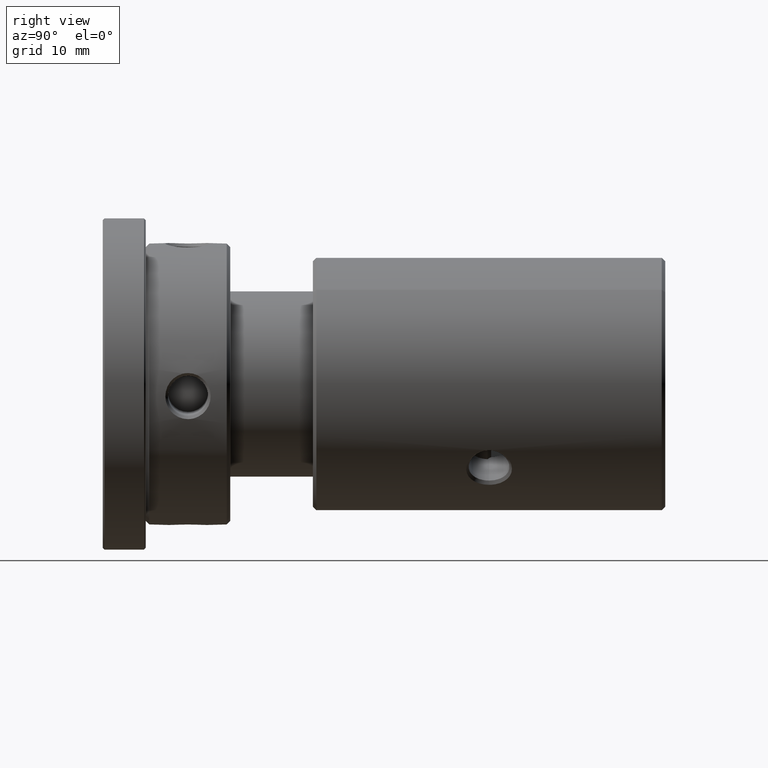
[diagram: clean part render]
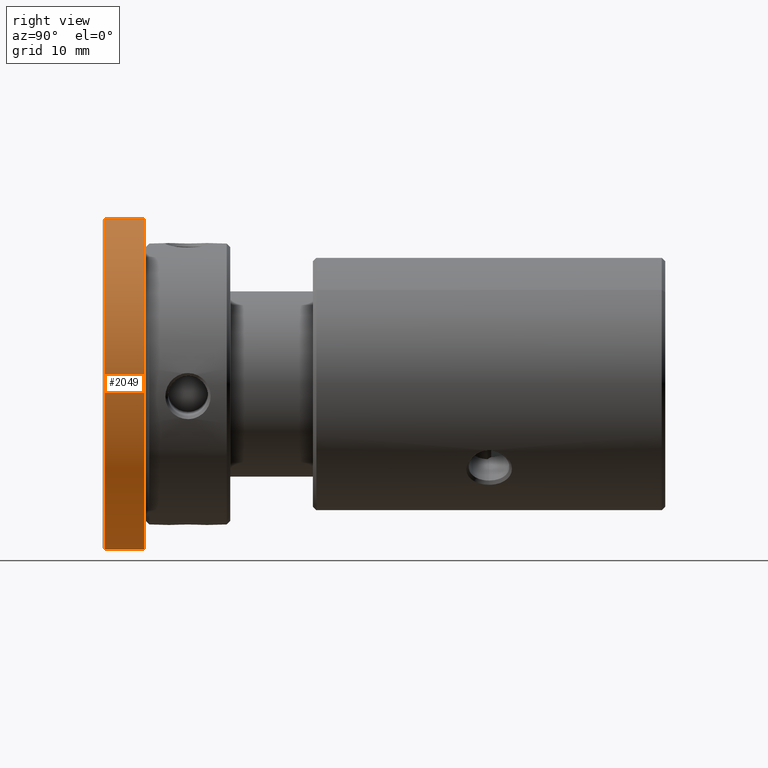
[diagram: same view with one face highlighted and labeled with its STEP entity id]
A machine part, right view. The second image highlights one B-rep face of the part: STEP entity #2049.
In plain terms, the highlighted cylindrical surface (partial cylindrical patch) has radius 23.5 mm, axis along (-0, -1, -0).
Its self-contained STEP definition (entity closure, byte-faithful):
#227 = VECTOR ( 'NONE', #2788, 1000.000000000000000 ) ;
#484 = ORIENTED_EDGE ( 'NONE', *, *, #7510, .F. ) ;
#1095 = ORIENTED_EDGE ( 'NONE', *, *, #1157, .T. ) ;
#1157 = EDGE_CURVE ( 'NONE', #2513, #4692, #7442, .T. ) ;
#1286 = DIRECTION ( 'NONE',  ( -0.000000000000000000, -1.000000000000000000, -0.000000000000000000 ) ) ;
#1404 = DIRECTION ( 'NONE',  ( 0.000000000000000000, 0.000000000000000000, -1.000000000000000000 ) ) ;
#2049 = ADVANCED_FACE ( 'NONE', ( #5066 ), #4035, .T. ) ;
#2301 = VERTEX_POINT ( 'NONE', #3601 ) ;
#2499 = CARTESIAN_POINT ( 'NONE',  ( 2.877919977996279531E-15, 5.849999999999992539, 23.49999999999999645 ) ) ;
#2513 = VERTEX_POINT ( 'NONE', #2499 ) ;
#2788 = DIRECTION ( 'NONE',  ( -0.000000000000000000, -1.000000000000000000, -0.000000000000000000 ) ) ;
#3601 = CARTESIAN_POINT ( 'NONE',  ( 0.000000000000000000, 0.2500000000000002220, -23.49999999999999645 ) ) ;
#4035 = CYLINDRICAL_SURFACE ( 'NONE', #10468, 23.49999999999999645 ) ;
#4692 = VERTEX_POINT ( 'NONE', #7137 ) ;
#4978 = EDGE_LOOP ( 'NONE', ( #11443, #1095, #10660, #484 ) ) ;
#5066 = FACE_OUTER_BOUND ( 'NONE', #4978, .T. ) ;
#5460 = EDGE_CURVE ( 'NONE', #9004, #2513, #10455, .T. ) ;
#5931 = VECTOR ( 'NONE', #8762, 1000.000000000000000 ) ;
#6828 = AXIS2_PLACEMENT_3D ( 'NONE', #9333, #10086, #7361 ) ;
#7137 = CARTESIAN_POINT ( 'NONE',  ( 2.877919977996279531E-15, 0.2500000000000002220, 23.49999999999999645 ) ) ;
#7166 = CARTESIAN_POINT ( 'NONE',  ( 0.000000000000000000, 5.849999999999992539, -23.49999999999999645 ) ) ;
#7316 = DIRECTION ( 'NONE',  ( 0.000000000000000000, 0.000000000000000000, 1.000000000000000000 ) ) ;
#7361 = DIRECTION ( 'NONE',  ( 0.000000000000000000, 0.000000000000000000, 1.000000000000000000 ) ) ;
#7442 = LINE ( 'NONE', #11148, #227 ) ;
#7510 = EDGE_CURVE ( 'NONE', #9004, #2301, #8823, .T. ) ;
#8306 = CARTESIAN_POINT ( 'NONE',  ( 0.000000000000000000, 5.849999999999992539, 0.000000000000000000 ) ) ;
#8426 = EDGE_CURVE ( 'NONE', #4692, #2301, #9986, .T. ) ;
#8762 = DIRECTION ( 'NONE',  ( -0.000000000000000000, -1.000000000000000000, -0.000000000000000000 ) ) ;
#8823 = LINE ( 'NONE', #10741, #5931 ) ;
#9004 = VERTEX_POINT ( 'NONE', #7166 ) ;
#9230 = DIRECTION ( 'NONE',  ( 0.000000000000000000, -1.000000000000000000, 0.000000000000000000 ) ) ;
#9333 = CARTESIAN_POINT ( 'NONE',  ( 0.000000000000000000, 0.2500000000000002220, 0.000000000000000000 ) ) ;
#9986 = CIRCLE ( 'NONE', #6828, 23.49999999999999645 ) ;
#10086 = DIRECTION ( 'NONE',  ( -0.000000000000000000, 1.000000000000000000, -0.000000000000000000 ) ) ;
#10455 = CIRCLE ( 'NONE', #11844, 23.49999999999999645 ) ;
#10468 = AXIS2_PLACEMENT_3D ( 'NONE', #11598, #1286, #1404 ) ;
#10660 = ORIENTED_EDGE ( 'NONE', *, *, #8426, .T. ) ;
#10741 = CARTESIAN_POINT ( 'NONE',  ( 0.000000000000000000, 6.099999999999999645, -23.49999999999999645 ) ) ;
#11148 = CARTESIAN_POINT ( 'NONE',  ( 2.877919977996279531E-15, 6.099999999999999645, 23.49999999999999645 ) ) ;
#11443 = ORIENTED_EDGE ( 'NONE', *, *, #5460, .T. ) ;
#11598 = CARTESIAN_POINT ( 'NONE',  ( 0.000000000000000000, 6.099999999999999645, 0.000000000000000000 ) ) ;
#11844 = AXIS2_PLACEMENT_3D ( 'NONE', #8306, #9230, #7316 ) ;